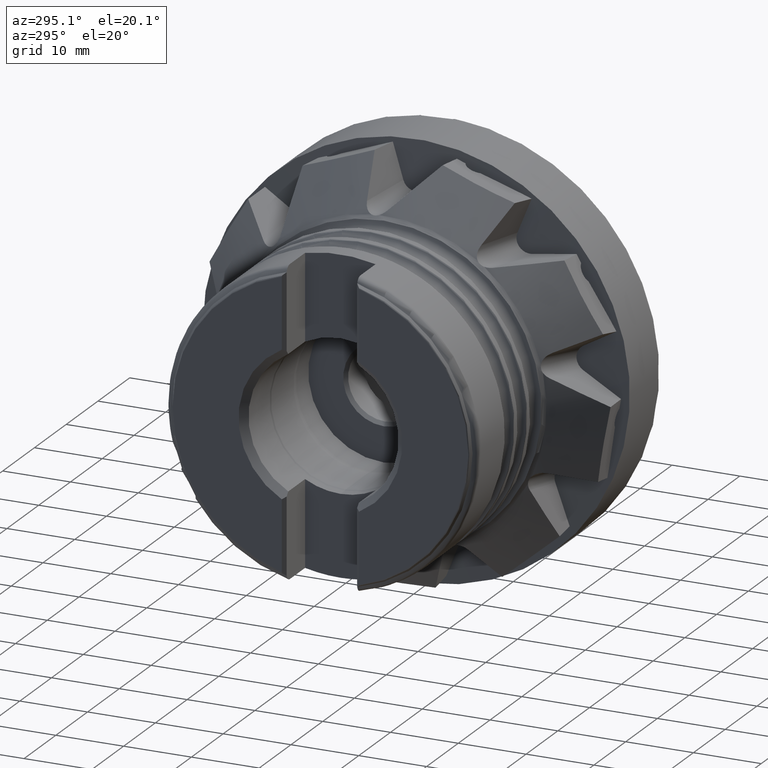
[diagram: clean part render]
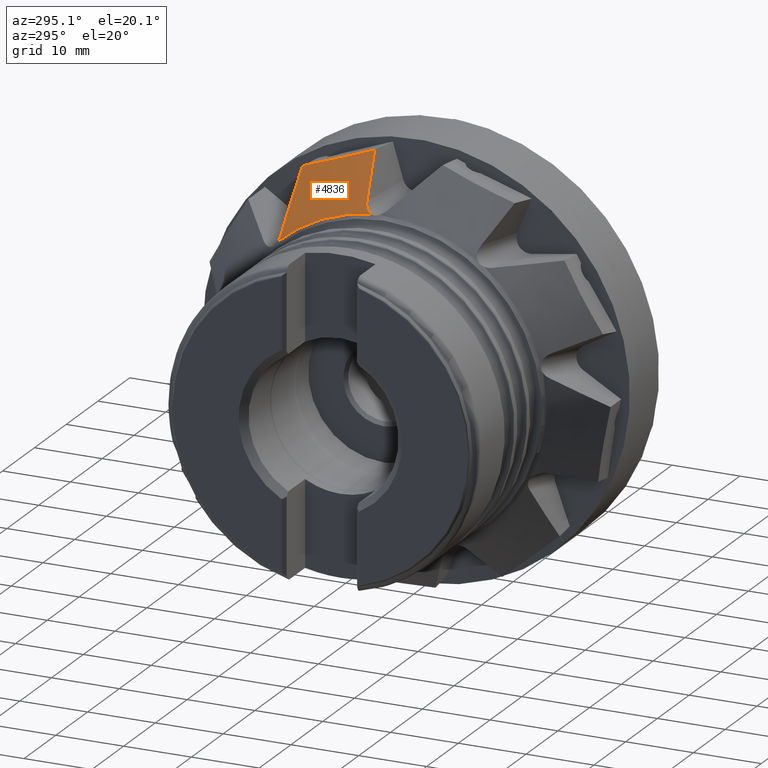
[diagram: same view with one face highlighted and labeled with its STEP entity id]
A machine part, auxiliary view. The second image highlights one B-rep face of the part: STEP entity #4836.
In plain terms, the highlighted conical surface has half-angle 51.154 deg.
Its self-contained STEP definition (entity closure, byte-faithful):
#15 = EDGE_CURVE ( 'NONE', #7365, #5982, #6689, .T. ) ;
#66 = FACE_OUTER_BOUND ( 'NONE', #3909, .T. ) ;
#220 = EDGE_CURVE ( 'NONE', #1485, #2913, #2562, .T. ) ;
#242 = CARTESIAN_POINT ( 'NONE',  ( -17.78568048082443600, 3.276683787689536100, 24.84242809607162500 ) ) ;
#293 = CARTESIAN_POINT ( 'NONE',  ( -13.38889592127873700, 6.065481659609407200, 29.96418593686642100 ) ) ;
#310 = CARTESIAN_POINT ( 'NONE',  ( -14.20535547515955500, 14.96837545035492800, 25.43576863468905100 ) ) ;
#391 = DIRECTION ( 'NONE',  ( 0.0000000000000000000, 0.0000000000000000000, -1.000000000000000000 ) ) ;
#602 = AXIS2_PLACEMENT_3D ( 'NONE', #1728, #6460, #391 ) ;
#844 = ORIENTED_EDGE ( 'NONE', *, *, #15, .F. ) ;
#911 = CARTESIAN_POINT ( 'NONE',  ( -17.66959787476907800, 3.302121539453333600, 24.98446004413846600 ) ) ;
#1256 = B_SPLINE_CURVE_WITH_KNOTS ( 'NONE', 3,
 ( #1603, #3620, #8384, #4314, #293, #5017 ),
 .UNSPECIFIED., .F., .F.,
 ( 4, 2, 4 ),
 ( 0.002204214959744999100, 0.007802588642851976600, 0.01340096232595895300 ),
 .UNSPECIFIED. ) ;
#1402 = CARTESIAN_POINT ( 'NONE',  ( -18.84233078654614200, 0.0000000000000000000, 0.0000000000000000000 ) ) ;
#1474 = CARTESIAN_POINT ( 'NONE',  ( -18.57231065105809300, 15.68118005743663100, 18.27593316870820700 ) ) ;
#1485 = VERTEX_POINT ( 'NONE', #2814 ) ;
#1495 = CIRCLE ( 'NONE', #2258, 23.74554130340690300 ) ;
#1584 = CARTESIAN_POINT ( 'NONE',  ( -18.23954043297001700, 3.041861594837152800, 24.30454918448503700 ) ) ;
#1603 = CARTESIAN_POINT ( 'NONE',  ( -13.32014907429244000, 14.83165587999243600, 26.76813564833167900 ) ) ;
#1704 = CARTESIAN_POINT ( 'NONE',  ( -18.38603016533242900, 15.63317743987093600, 18.61944028814849300 ) ) ;
#1728 = CARTESIAN_POINT ( 'NONE',  ( -13.00000000000000000, 0.0000000000000000000, 0.0000000000000000000 ) ) ;
#1929 = CARTESIAN_POINT ( 'NONE',  ( -16.76978024715132400, 15.37154811349926800, 21.38124551690907900 ) ) ;
#2076 = DIRECTION ( 'NONE',  ( 0.0000000000000000000, 0.0000000000000000000, -1.000000000000000000 ) ) ;
#2144 = CARTESIAN_POINT ( 'NONE',  ( -18.38603016533242900, 15.63317743987093600, 18.61944028814849300 ) ) ;
#2257 = CARTESIAN_POINT ( 'NONE',  ( -18.79117833417376500, 2.300140499592193700, 23.69829705985292600 ) ) ;
#2258 = AXIS2_PLACEMENT_3D ( 'NONE', #1402, #6129, #2076 ) ;
#2389 = CARTESIAN_POINT ( 'NONE',  ( -13.32014907429244000, 14.83165587999243600, 26.76813564833167900 ) ) ;
#2562 = B_SPLINE_CURVE_WITH_KNOTS ( 'NONE', 3,
 ( #1704, #2931, #1929, #3951, #310, #2389 ),
 .UNSPECIFIED., .F., .F.,
 ( 4, 2, 4 ),
 ( 0.0003617513688512802500, 0.005175970268807773100, 0.009990189168764261300 ),
 .UNSPECIFIED. ) ;
#2814 = CARTESIAN_POINT ( 'NONE',  ( -18.38603016533242900, 15.63317743987093600, 18.61944028814849300 ) ) ;
#2900 = CARTESIAN_POINT ( 'NONE',  ( -13.09395926139060200, 4.304419629213603200, 30.58189097690350900 ) ) ;
#2913 = VERTEX_POINT ( 'NONE', #3446 ) ;
#2929 = CARTESIAN_POINT ( 'NONE',  ( -18.71849700317087100, 2.458786099016526900, 23.77282314510414800 ) ) ;
#2931 = CARTESIAN_POINT ( 'NONE',  ( -17.59482737457062400, 15.50365911768374800, 20.01099822483063300 ) ) ;
#3446 = CARTESIAN_POINT ( 'NONE',  ( -13.32014907429244000, 14.83165587999243600, 26.76813564833167900 ) ) ;
#3465 = CARTESIAN_POINT ( 'NONE',  ( -18.79324399637577200, 15.85246909241879500, 17.76180002882210800 ) ) ;
#3545 = CARTESIAN_POINT ( 'NONE',  ( -18.84233078654614600, 15.94659049083753100, 17.59423154074462700 ) ) ;
#3589 = EDGE_CURVE ( 'NONE', #8456, #7365, #5637, .T. ) ;
#3620 = CARTESIAN_POINT ( 'NONE',  ( -13.54191057461452800, 13.08369548811301000, 27.42183714435035900 ) ) ;
#3694 = ORIENTED_EDGE ( 'NONE', *, *, #7738, .F. ) ;
#3838 = B_SPLINE_CURVE_WITH_KNOTS ( 'NONE', 3,
 ( #8223, #3465, #5528, #1474, #6204, #2144 ),
 .UNSPECIFIED., .F., .F.,
 ( 4, 2, 4 ),
 ( 7.945549002148061400E-007, 0.0005855494158839839200, 0.001170304276867753200 ),
 .UNSPECIFIED. ) ;
#3909 = EDGE_LOOP ( 'NONE', ( #4566, #6771, #4302, #3694, #7776, #844 ) ) ;
#3951 = CARTESIAN_POINT ( 'NONE',  ( -15.07513309643312000, 15.10391308237728800, 24.09368663558479900 ) ) ;
#4256 = CARTESIAN_POINT ( 'NONE',  ( -17.90058668098718900, 3.236022973455532800, 24.70389859714330800 ) ) ;
#4258 = CARTESIAN_POINT ( 'NONE',  ( -16.14456512270328400, 3.636309458702890100, 26.85040172138113600 ) ) ;
#4302 = ORIENTED_EDGE ( 'NONE', *, *, #220, .F. ) ;
#4314 = CARTESIAN_POINT ( 'NONE',  ( -13.55920157120004700, 7.823383488235087700, 29.33779831382499400 ) ) ;
#4349 = EDGE_CURVE ( 'NONE', #5692, #5982, #1495, .T. ) ;
#4381 = CARTESIAN_POINT ( 'NONE',  ( -17.66959787476907800, 3.302121539453333600, 24.98446004413846600 ) ) ;
#4540 = CARTESIAN_POINT ( 'NONE',  ( -13.09395926139060200, 4.304419629213603200, 30.58189097690350900 ) ) ;
#4566 = ORIENTED_EDGE ( 'NONE', *, *, #3589, .F. ) ;
#4836 = ADVANCED_FACE ( 'NONE', ( #66 ), #5029, .T. ) ;
#5017 = CARTESIAN_POINT ( 'NONE',  ( -13.09395926139060200, 4.304419629213603200, 30.58189097690350900 ) ) ;
#5029 = CONICAL_SURFACE ( 'NONE', #602, 30.99999999999995000, 0.8928056660857351900 ) ;
#5528 = CARTESIAN_POINT ( 'NONE',  ( -18.72751438418034200, 15.78328139407126500, 17.93189110631007600 ) ) ;
#5637 = B_SPLINE_CURVE_WITH_KNOTS ( 'NONE', 3,
 ( #2900, #8337, #4258, #5922 ),
 .UNSPECIFIED., .F., .F.,
 ( 4, 4 ),
 ( 0.0001501825883009142300, 0.007448970379984397300 ),
 .UNSPECIFIED. ) ;
#5639 = CARTESIAN_POINT ( 'NONE',  ( -18.12748563373364900, 3.118884591985018800, 24.43495941941806400 ) ) ;
#5692 = VERTEX_POINT ( 'NONE', #3545 ) ;
#5922 = CARTESIAN_POINT ( 'NONE',  ( -17.66959787476907800, 3.302121539453333600, 24.98446004413846600 ) ) ;
#5982 = VERTEX_POINT ( 'NONE', #7815 ) ;
#6129 = DIRECTION ( 'NONE',  ( 1.000000000000000000, -0.0000000000000000000, -0.0000000000000000000 ) ) ;
#6204 = CARTESIAN_POINT ( 'NONE',  ( -18.48209332452272900, 15.64890278784443500, 18.45048556104836000 ) ) ;
#6313 = CARTESIAN_POINT ( 'NONE',  ( -18.44837789783674300, 2.850022656352045200, 24.06668485214302700 ) ) ;
#6460 = DIRECTION ( 'NONE',  ( 1.000000000000000000, -0.0000000000000000000, -0.0000000000000000000 ) ) ;
#6689 = B_SPLINE_CURVE_WITH_KNOTS ( 'NONE', 3,
 ( #911, #242, #4256, #5639, #1584, #6313, #6982, #2929, #2257, #7674 ),
 .UNSPECIFIED., .F., .F.,
 ( 4, 2, 2, 2, 4 ),
 ( 0.01151497346002765100, 0.01206763359340483700, 0.01262029372678202100, 0.01317295386015920500, 0.01372561399353639100 ),
 .UNSPECIFIED. ) ;
#6771 = ORIENTED_EDGE ( 'NONE', *, *, #8308, .F. ) ;
#6982 = CARTESIAN_POINT ( 'NONE',  ( -18.54787442368042200, 2.732396446983549300, 23.95617683411535700 ) ) ;
#7365 = VERTEX_POINT ( 'NONE', #4381 ) ;
#7674 = CARTESIAN_POINT ( 'NONE',  ( -18.84233078654613900, 2.125709444570138100, 23.65020277183830900 ) ) ;
#7738 = EDGE_CURVE ( 'NONE', #5692, #1485, #3838, .T. ) ;
#7776 = ORIENTED_EDGE ( 'NONE', *, *, #4349, .T. ) ;
#7815 = CARTESIAN_POINT ( 'NONE',  ( -18.84233078654613900, 2.125709444570138100, 23.65020277183830900 ) ) ;
#8223 = CARTESIAN_POINT ( 'NONE',  ( -18.84233078654614600, 15.94659049083753100, 17.59423154074462700 ) ) ;
#8308 = EDGE_CURVE ( 'NONE', #2913, #8456, #1256, .T. ) ;
#8337 = CARTESIAN_POINT ( 'NONE',  ( -14.61931886738448900, 3.970392416322605200, 28.71618770559605600 ) ) ;
#8384 = CARTESIAN_POINT ( 'NONE',  ( -13.63573403927998500, 11.33249103998420700, 28.06662566907645800 ) ) ;
#8456 = VERTEX_POINT ( 'NONE', #4540 ) ;